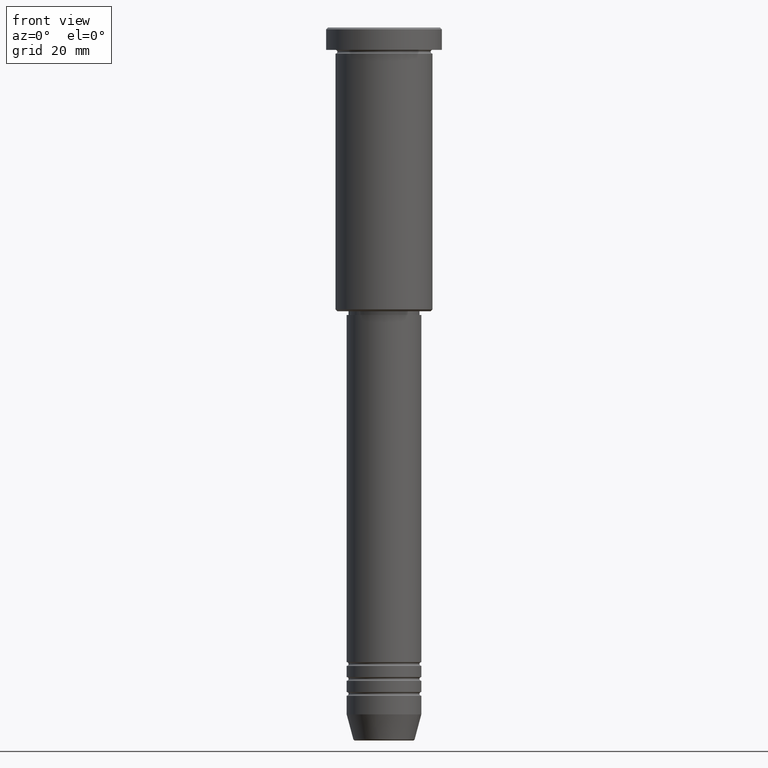
[diagram: clean part render]
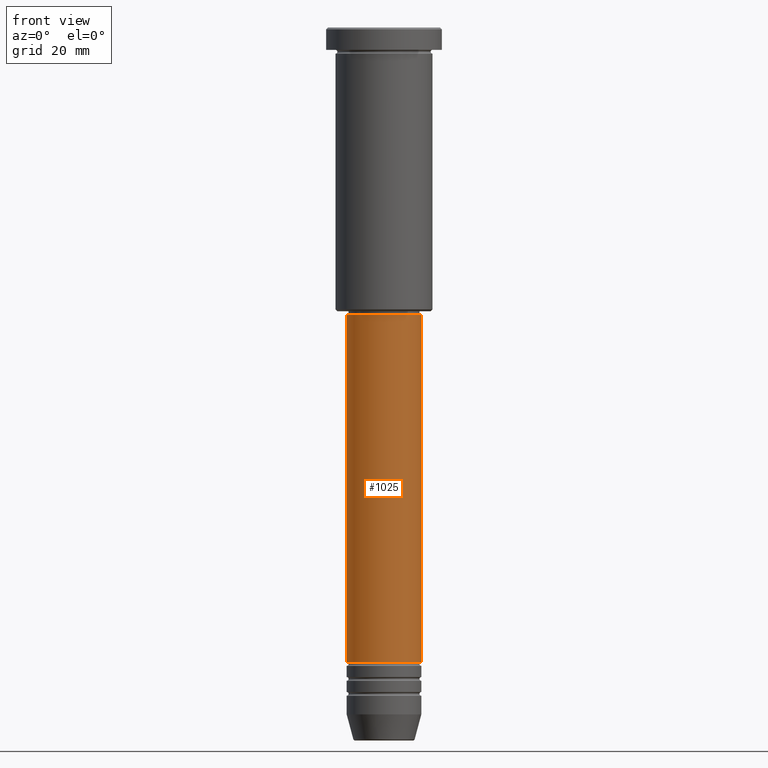
[diagram: same view with one face highlighted and labeled with its STEP entity id]
A machine part, front view. The second image highlights one B-rep face of the part: STEP entity #1025.
In plain terms, the highlighted cylindrical surface (partial cylindrical patch) has radius 10 mm, axis along (-0, -0, 1).
Its self-contained STEP definition (entity closure, byte-faithful):
#84 = CIRCLE ( 'NONE', #430, 10.00000000000000178 ) ;
#130 = VECTOR ( 'NONE', #625, 1000.000000000000000 ) ;
#143 = CARTESIAN_POINT ( 'NONE',  ( 10.00000000000000178, 0.000000000000000000, -169.9999999999999147 ) ) ;
#155 = EDGE_CURVE ( 'NONE', #1181, #447, #186, .T. ) ;
#172 = DIRECTION ( 'NONE',  ( 1.000000000000000000, 0.000000000000000000, 0.000000000000000000 ) ) ;
#186 = LINE ( 'NONE', #277, #227 ) ;
#187 = EDGE_LOOP ( 'NONE', ( #401, #817, #304, #1129 ) ) ;
#198 = AXIS2_PLACEMENT_3D ( 'NONE', #782, #619, #533 ) ;
#227 = VECTOR ( 'NONE', #300, 1000.000000000000000 ) ;
#237 = FACE_OUTER_BOUND ( 'NONE', #187, .T. ) ;
#277 = CARTESIAN_POINT ( 'NONE',  ( 10.00000000000000000, 0.000000000000000000, 0.000000000000000000 ) ) ;
#300 = DIRECTION ( 'NONE',  ( -0.000000000000000000, -0.000000000000000000, 1.000000000000000000 ) ) ;
#304 = ORIENTED_EDGE ( 'NONE', *, *, #155, .T. ) ;
#308 = EDGE_CURVE ( 'NONE', #624, #1181, #84, .T. ) ;
#330 = CIRCLE ( 'NONE', #1007, 9.999999999999998224 ) ;
#331 = CARTESIAN_POINT ( 'NONE',  ( 0.000000000000000000, 0.000000000000000000, -169.9999999999999147 ) ) ;
#354 = CARTESIAN_POINT ( 'NONE',  ( 9.999999999999998224, 0.000000000000000000, -77.00000000000004263 ) ) ;
#401 = ORIENTED_EDGE ( 'NONE', *, *, #1019, .F. ) ;
#425 = DIRECTION ( 'NONE',  ( 1.000000000000000000, 0.000000000000000000, 0.000000000000000000 ) ) ;
#430 = AXIS2_PLACEMENT_3D ( 'NONE', #331, #1060, #425 ) ;
#447 = VERTEX_POINT ( 'NONE', #354 ) ;
#496 = CARTESIAN_POINT ( 'NONE',  ( -9.999999999999998224, 1.224646799147353256E-15, -77.00000000000004263 ) ) ;
#531 = CARTESIAN_POINT ( 'NONE',  ( 0.000000000000000000, 0.000000000000000000, -77.00000000000004263 ) ) ;
#533 = DIRECTION ( 'NONE',  ( 1.000000000000000000, 0.000000000000000000, 0.000000000000000000 ) ) ;
#562 = EDGE_CURVE ( 'NONE', #1106, #447, #330, .T. ) ;
#619 = DIRECTION ( 'NONE',  ( -0.000000000000000000, -0.000000000000000000, 1.000000000000000000 ) ) ;
#624 = VERTEX_POINT ( 'NONE', #748 ) ;
#625 = DIRECTION ( 'NONE',  ( -0.000000000000000000, -0.000000000000000000, 1.000000000000000000 ) ) ;
#701 = LINE ( 'NONE', #974, #130 ) ;
#748 = CARTESIAN_POINT ( 'NONE',  ( -10.00000000000000178, 1.224646799147353454E-15, -169.9999999999999147 ) ) ;
#782 = CARTESIAN_POINT ( 'NONE',  ( 0.000000000000000000, 0.000000000000000000, 0.000000000000000000 ) ) ;
#798 = CYLINDRICAL_SURFACE ( 'NONE', #198, 10.00000000000000000 ) ;
#817 = ORIENTED_EDGE ( 'NONE', *, *, #308, .T. ) ;
#974 = CARTESIAN_POINT ( 'NONE',  ( -10.00000000000000000, 1.224646799147353256E-15, 0.000000000000000000 ) ) ;
#1007 = AXIS2_PLACEMENT_3D ( 'NONE', #531, #1162, #172 ) ;
#1019 = EDGE_CURVE ( 'NONE', #624, #1106, #701, .T. ) ;
#1025 = ADVANCED_FACE ( 'NONE', ( #237 ), #798, .T. ) ;
#1060 = DIRECTION ( 'NONE',  ( -0.000000000000000000, -0.000000000000000000, 1.000000000000000000 ) ) ;
#1106 = VERTEX_POINT ( 'NONE', #496 ) ;
#1129 = ORIENTED_EDGE ( 'NONE', *, *, #562, .F. ) ;
#1162 = DIRECTION ( 'NONE',  ( -0.000000000000000000, -0.000000000000000000, 1.000000000000000000 ) ) ;
#1181 = VERTEX_POINT ( 'NONE', #143 ) ;